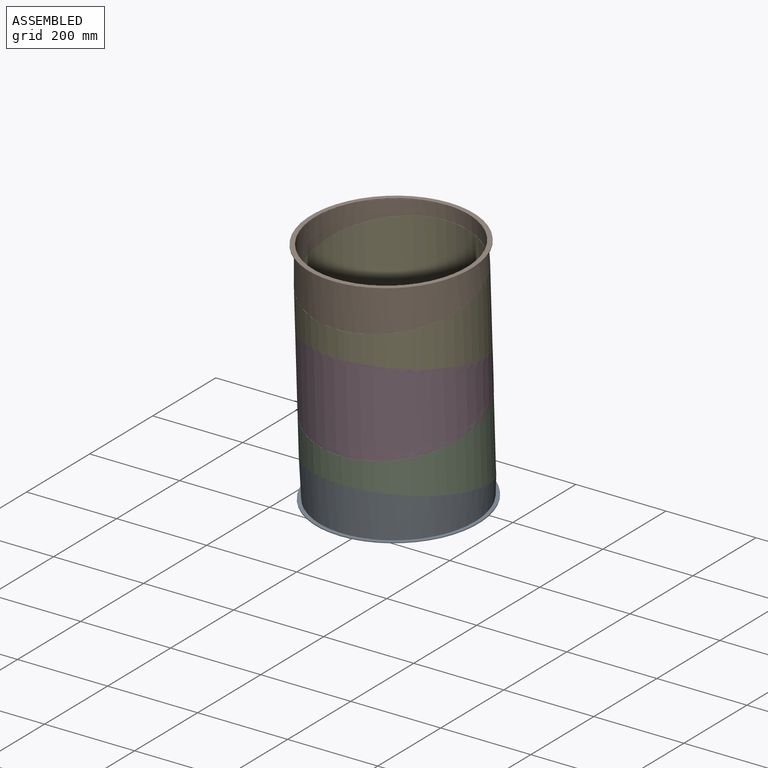
[diagram: assembled view]
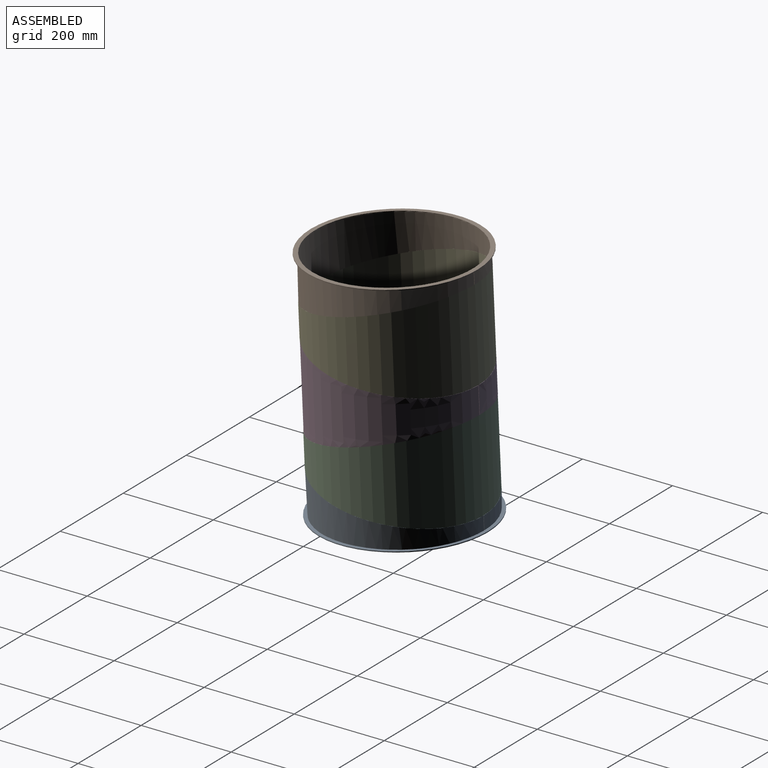
[diagram: assembled view, second angle]
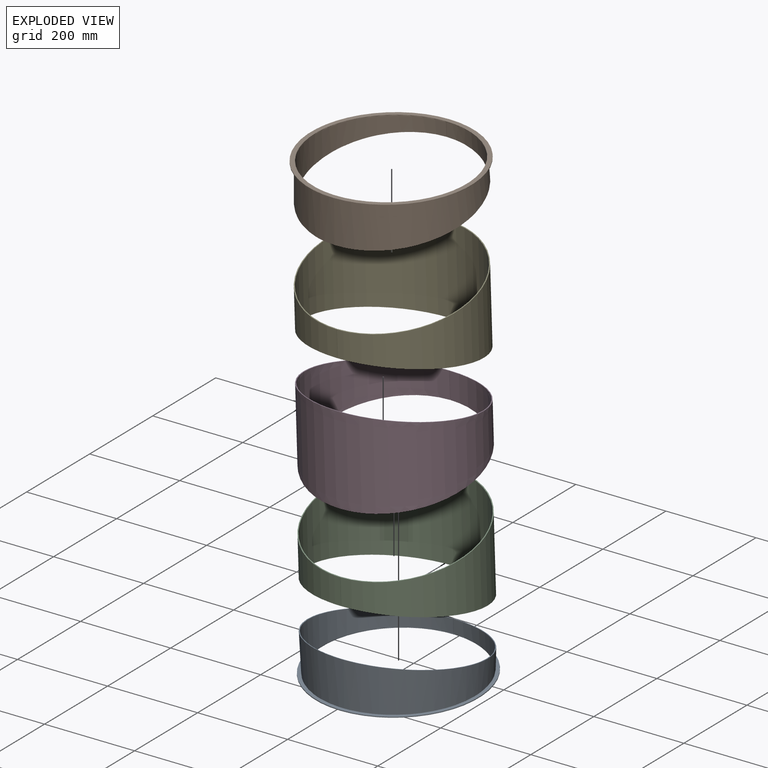
[diagram: exploded view]
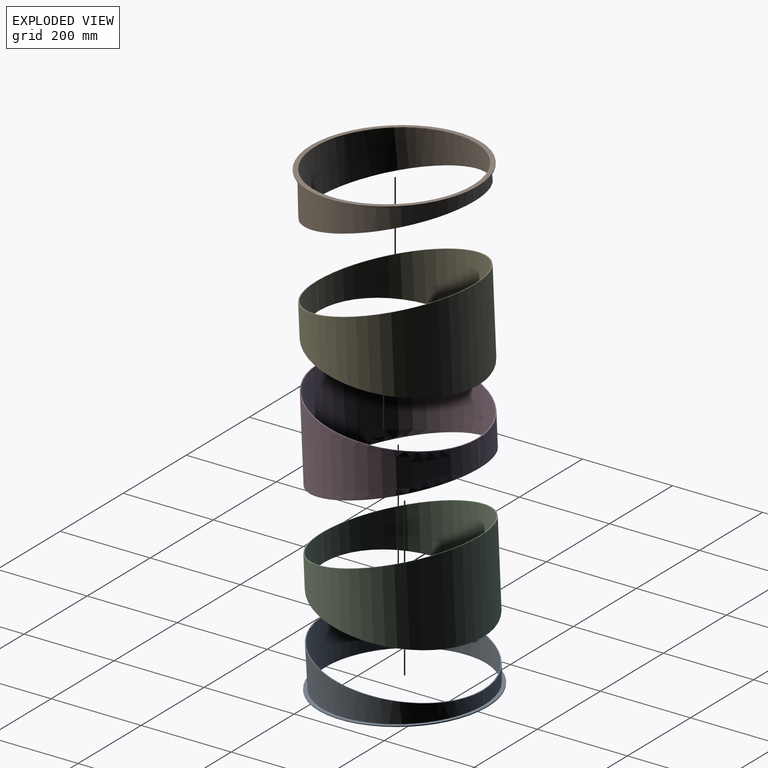
[diagram: exploded view, second angle]
ASSEMBLY  parts=5 mates=4
PART A: 9 faces, bbox 370x370x101.8 mm
  f0: plane 360.88x353.93mm, normal (0,-0.2,0.98), area 2254.3mm2, adj f1,f2,f3,f4
  f1: bspline ~356.89x350mm, area 71441.2mm2, adj f0,f2,f4,f6
  f2: plane 29.84x2mm, normal (-1,0,0), area 58.7mm2, adj f0,f1,f3,f5
  f3: bspline ~360.89x354mm, area 72250.2mm2, adj f0,f2,f4,f5
  f4: plane 29.84x2mm, normal (1,0,0), area 58.7mm2, adj f0,f1,f3,f5
  f5: plane 370x370mm, normal (0,0,1), area 9102.9mm2, adj f2,f3,f4,f6,f7
  f6: cylinder r=175mm len=350mm, axis (0,0,1), area 2199.1mm2, adj f1,f5,f8
  f7: cylinder r=185mm len=370mm, axis (0,0,1), area 2324.8mm2, adj f5,f8
  f8: plane 370x370mm, normal (0,0,-1), area 11309.7mm2, adj f6,f7
PART B: same geometry as A
PART C: 6 faces, bbox 360.9x376.5x254.9 mm
  f0: plane 360.88x353.93mm, normal (0,0.2,-0.98), area 2251.1mm2, adj f2,f3,f4,f5
  f1: plane 360.88x300.04mm, normal (0,-0.56,0.83), area 2254.3mm2, adj f2,f3,f4,f5
  f2: bspline ~372.84x356.89mm, area 143501.1mm2, adj f0,f1,f3,f5
  f3: plane 55.52x24.5mm, normal (-1,0,0), area 116.3mm2, adj f0,f1,f2,f4
  f4: bspline ~376.46x360.89mm, area 145111.1mm2, adj f0,f1,f3,f5
  f5: plane 55.52x24.5mm, normal (1,0,0), area 116.3mm2, adj f0,f1,f2,f4
PART D: 6 faces, bbox 360.9x319.9x403.4 mm
  f0: plane 360.88x353.92mm, normal (0,0.98,0.2), area 2251.1mm2, adj f2,f3,f4,f5
  f1: plane 360.88x300.04mm, normal (0,-0.83,-0.56), area 2254.3mm2, adj f2,f3,f4,f5
  f2: extruded ~399.48x356.86mm, area 143499mm2, adj f0,f1,f3,f5
  f3: plane 55.52x24.5mm, normal (-1,0,0), area 116.3mm2, adj f0,f1,f2,f4
  f4: extruded ~403.41x360.86mm, area 145108.9mm2, adj f0,f1,f3,f5
  f5: plane 55.52x24.5mm, normal (1,0,0), area 116.3mm2, adj f0,f1,f2,f4
PART E: same geometry as C
PLACE A rot(axis=(0,0.02,-1),180deg) t=(21.73,445.09,108.66)mm
PLACE B rot(axis=(-1,0,0),177.4deg) t=(21.73,422.01,625.57)mm
PLACE C rot(axis=(-1,0,0),19.9deg) t=(21.73,-210.34,208.89)mm
PLACE D rot(axis=(1,0,0),70.1deg) t=(21.73,433.55,367.12)mm
PLACE E rot(axis=(0,-0.98,-0.22),180deg) t=(21.73,-221.88,467.34)mm
MATE fastened C.f0 <-> A.f0  axis (0,-0.15,-0.99) through (21.73,117.38,158.77)mm
MATE planar D.f1 <-> C.f1  axis (0,0.24,-0.97) through (21.73,111.61,288)mm
MATE planar E.f1 <-> D.f0  axis (0,-0.15,-0.99) through (21.73,105.84,417.23)mm
MATE fastened E.f0 <-> B.f0  axis (0,-0.24,0.97) through (21.73,100.07,546.45)mm
